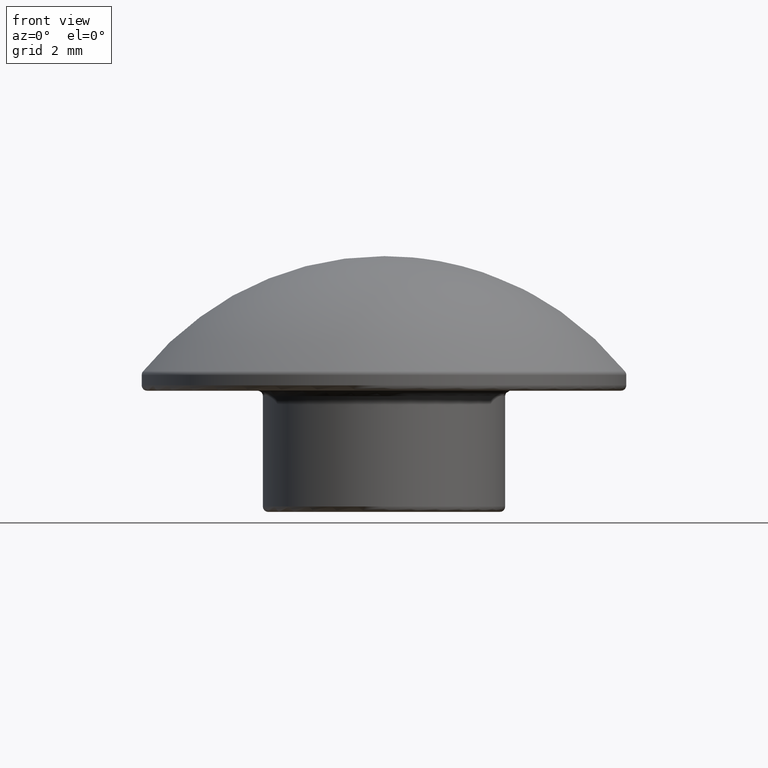
[diagram: clean part render]
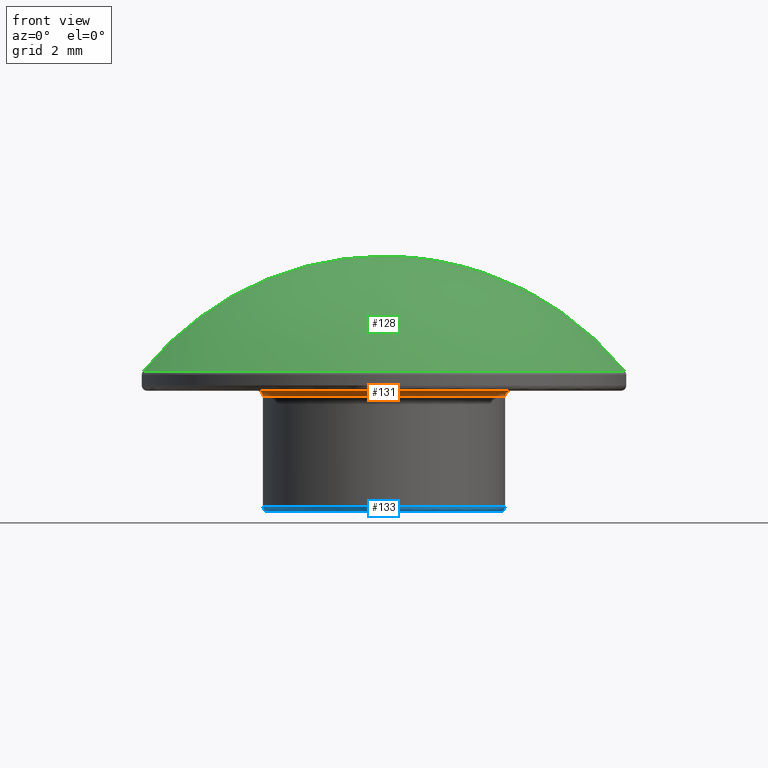
[diagram: same view with three faces highlighted in distinct colors, each labeled with its STEP entity id]
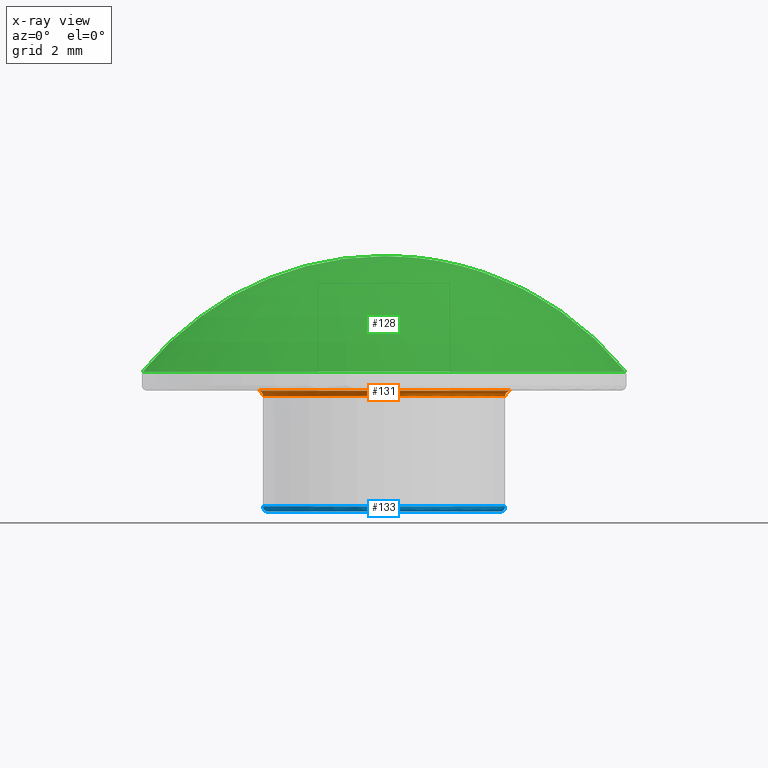
[diagram: x-ray of the same camera — body ghosted, the three highlighted faces saturated]
A machine part, front view with three faces highlighted in distinct colors.
The next image is the same camera in x-ray (body ghosted, the three faces saturated) — at least one of them is partly hidden behind the body in this view.
Their STEP definitions:

[orange] entity #131 — the highlighted toroidal blend (fillet) surface has major radius 4.7 mm and minor (blend) radius 0.2 mm.
#27=FACE_BOUND('',#55,.T.);
#38=FACE_OUTER_BOUND('',#54,.T.);
#54=EDGE_LOOP('',(#109));
#55=EDGE_LOOP('',(#110));
#71=CIRCLE('',#149,4.7);
#72=CIRCLE('',#151,4.5);
#82=VERTEX_POINT('',#225);
#83=VERTEX_POINT('',#228);
#93=EDGE_CURVE('',#82,#82,#71,.T.);
#94=EDGE_CURVE('',#83,#83,#72,.T.);
#109=ORIENTED_EDGE('',*,*,#94,.T.);
#110=ORIENTED_EDGE('',*,*,#93,.T.);
#124=TOROIDAL_SURFACE('',#150,4.7,0.2);
#131=ADVANCED_FACE('',(#38,#27),#124,.F.);
#149=AXIS2_PLACEMENT_3D('',#226,#183,#184);
#150=AXIS2_PLACEMENT_3D('',#227,#185,#186);
#151=AXIS2_PLACEMENT_3D('',#229,#187,#188);
#183=DIRECTION('center_axis',(0.,0.,-1.));
#184=DIRECTION('ref_axis',(1.,0.,0.));
#185=DIRECTION('center_axis',(0.,0.,1.));
#186=DIRECTION('ref_axis',(1.,0.,0.));
#187=DIRECTION('center_axis',(0.,0.,1.));
#188=DIRECTION('ref_axis',(1.,0.,0.));
#225=CARTESIAN_POINT('',(-4.7,5.75583995599256E-16,6.5));
#226=CARTESIAN_POINT('Origin',(0.,0.,6.5));
#227=CARTESIAN_POINT('Origin',(0.,0.,6.3));
#228=CARTESIAN_POINT('',(-4.5,-5.51091059616309E-16,6.3));
#229=CARTESIAN_POINT('Origin',(0.,0.,6.3));

[blue] entity #133 — the highlighted toroidal blend (fillet) surface has major radius 4.3 mm and minor (blend) radius 0.2 mm.
#29=FACE_BOUND('',#59,.T.);
#40=FACE_OUTER_BOUND('',#58,.T.);
#58=EDGE_LOOP('',(#113));
#59=EDGE_LOOP('',(#114));
#73=CIRCLE('',#153,4.5);
#74=CIRCLE('',#155,4.3);
#84=VERTEX_POINT('',#231);
#85=VERTEX_POINT('',#234);
#95=EDGE_CURVE('',#84,#84,#73,.T.);
#96=EDGE_CURVE('',#85,#85,#74,.T.);
#113=ORIENTED_EDGE('',*,*,#95,.T.);
#114=ORIENTED_EDGE('',*,*,#96,.T.);
#125=TOROIDAL_SURFACE('',#154,4.3,0.2);
#133=ADVANCED_FACE('',(#40,#29),#125,.T.);
#153=AXIS2_PLACEMENT_3D('',#232,#191,#192);
#154=AXIS2_PLACEMENT_3D('',#233,#193,#194);
#155=AXIS2_PLACEMENT_3D('',#235,#195,#196);
#191=DIRECTION('center_axis',(0.,0.,-1.));
#192=DIRECTION('ref_axis',(1.,0.,0.));
#193=DIRECTION('center_axis',(0.,0.,-1.));
#194=DIRECTION('ref_axis',(-1.,0.,0.));
#195=DIRECTION('center_axis',(0.,0.,1.));
#196=DIRECTION('ref_axis',(1.,0.,0.));
#231=CARTESIAN_POINT('',(-4.5,5.51091059616309E-16,2.2));
#232=CARTESIAN_POINT('Origin',(0.,0.,2.2));
#233=CARTESIAN_POINT('Origin',(0.,0.,2.2));
#234=CARTESIAN_POINT('',(-4.3,-5.26598123633362E-16,2.));
#235=CARTESIAN_POINT('Origin',(0.,0.,2.));

[green] entity #128 — the highlighted spherical surface has radius 11.5 mm.
#19=SPHERICAL_SURFACE('',#145,11.5);
#35=FACE_OUTER_BOUND('',#49,.T.);
#49=EDGE_LOOP('',(#104));
#68=CIRCLE('',#142,8.95567978584934);
#79=VERTEX_POINT('',#215);
#90=EDGE_CURVE('',#79,#79,#68,.T.);
#104=ORIENTED_EDGE('',*,*,#90,.F.);
#128=ADVANCED_FACE('',(#35),#19,.T.);
#142=AXIS2_PLACEMENT_3D('',#216,#169,#170);
#145=AXIS2_PLACEMENT_3D('',#220,#175,#176);
#169=DIRECTION('center_axis',(0.,0.,-1.));
#170=DIRECTION('ref_axis',(1.,6.12323399573677E-17,0.));
#175=DIRECTION('center_axis',(6.12323399573677E-17,0.,1.));
#176=DIRECTION('ref_axis',(1.,0.,0.));
#215=CARTESIAN_POINT('',(-8.95567978584934,5.48377229196452E-16,7.21427748103229));
#216=CARTESIAN_POINT('Origin',(0.,0.,7.21427748103229));
#220=CARTESIAN_POINT('Origin',(0.,0.,0.));